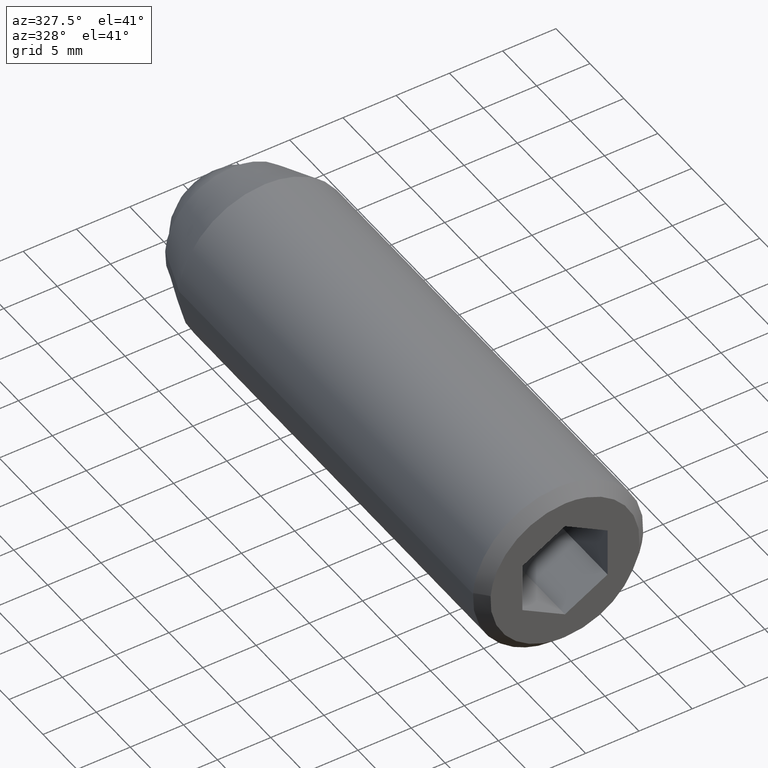
[diagram: clean part render]
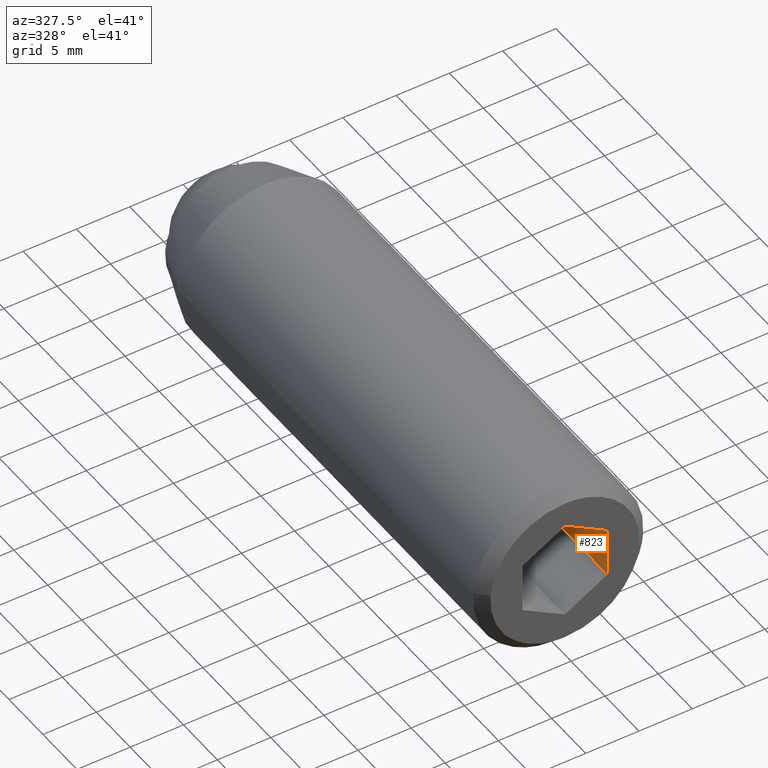
[diagram: same view with one face highlighted and labeled with its STEP entity id]
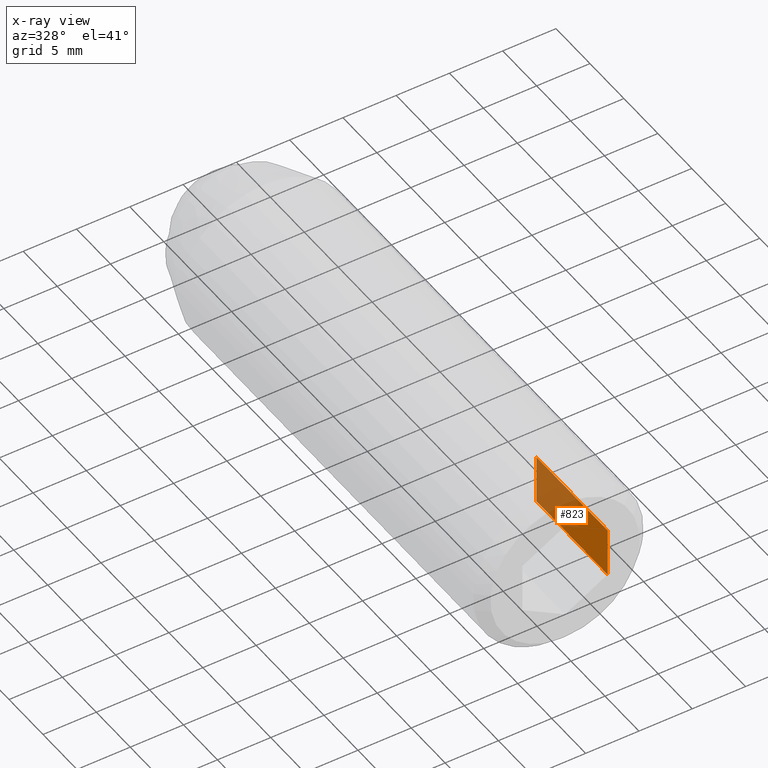
[diagram: x-ray of the same camera — body ghosted, the highlighted face saturated]
A machine part, auxiliary view. The second image highlights one B-rep face of the part: STEP entity #823.
The next image is the same camera in x-ray: the body ghosted, the highlighted face saturated — about 54% of this face is hidden behind the body in this view.
In plain terms, the highlighted face is a freeform B-spline surface patch.
Its self-contained STEP definition (entity closure, byte-faithful):
#752=CARTESIAN_POINT('',(4.0,-38.600000000000001,-2.309401000000000));
#753=VERTEX_POINT('',#752);
#759=CARTESIAN_POINT('',(4.0,-38.600000000000001,2.309401000000000));
#760=VERTEX_POINT('',#759);
#761=CARTESIAN_POINT('',(4.0,-38.600000000000001,-2.309401000000000));
#762=CARTESIAN_POINT('',(4.0,-38.600000000000001,2.309401000000000));
#763=QUASI_UNIFORM_CURVE('',1,(#761,#762),.UNSPECIFIED.,.F.,.U.);
#764=EDGE_CURVE('',#753,#760,#763,.T.);
#779=CARTESIAN_POINT('',(4.0,-49.099999999999987,2.309401000000000));
#780=VERTEX_POINT('',#779);
#794=CARTESIAN_POINT('',(4.0,-38.600000000000001,2.309401000000000));
#795=CARTESIAN_POINT('',(4.0,-49.099999999999987,2.309401000000000));
#796=QUASI_UNIFORM_CURVE('',1,(#794,#795),.UNSPECIFIED.,.F.,.U.);
#797=EDGE_CURVE('',#760,#780,#796,.T.);
#802=CARTESIAN_POINT('',(4.0,-49.624473477611922,2.540110194305874));
#803=CARTESIAN_POINT('',(4.0,-49.624473477611922,-2.540110276896490));
#804=CARTESIAN_POINT('',(4.0,-38.075523236682052,2.540110194305874));
#805=CARTESIAN_POINT('',(4.0,-38.075523236682052,-2.540110276896490));
#806=B_SPLINE_SURFACE_WITH_KNOTS('',1,1,((#802,#804),(#803,#805)),.UNSPECIFIED.,.F.,.F.,.U.,(2,2),(2,2),(0.0,5.080220471202364),(0.0,11.548950240929861),.UNSPECIFIED.);
#807=CARTESIAN_POINT('',(4.0,-49.099999999999987,-2.309401000000000));
#808=VERTEX_POINT('',#807);
#809=CARTESIAN_POINT('',(4.0,-49.099999999999987,-2.309401000000000));
#810=CARTESIAN_POINT('',(4.0,-49.099999999999987,2.309401000000000));
#811=QUASI_UNIFORM_CURVE('',1,(#809,#810),.UNSPECIFIED.,.F.,.U.);
#812=EDGE_CURVE('',#808,#780,#811,.T.);
#813=ORIENTED_EDGE('',*,*,#812,.T.);
#814=ORIENTED_EDGE('',*,*,#797,.F.);
#815=ORIENTED_EDGE('',*,*,#764,.F.);
#816=CARTESIAN_POINT('',(4.0,-38.600000000000001,-2.309401000000000));
#817=CARTESIAN_POINT('',(4.0,-49.099999999999987,-2.309401000000000));
#818=QUASI_UNIFORM_CURVE('',1,(#816,#817),.UNSPECIFIED.,.F.,.U.);
#819=EDGE_CURVE('',#753,#808,#818,.T.);
#820=ORIENTED_EDGE('',*,*,#819,.T.);
#821=EDGE_LOOP('',(#813,#814,#815,#820));
#822=FACE_OUTER_BOUND('',#821,.T.);
#823=ADVANCED_FACE('',(#822),#806,.F.);